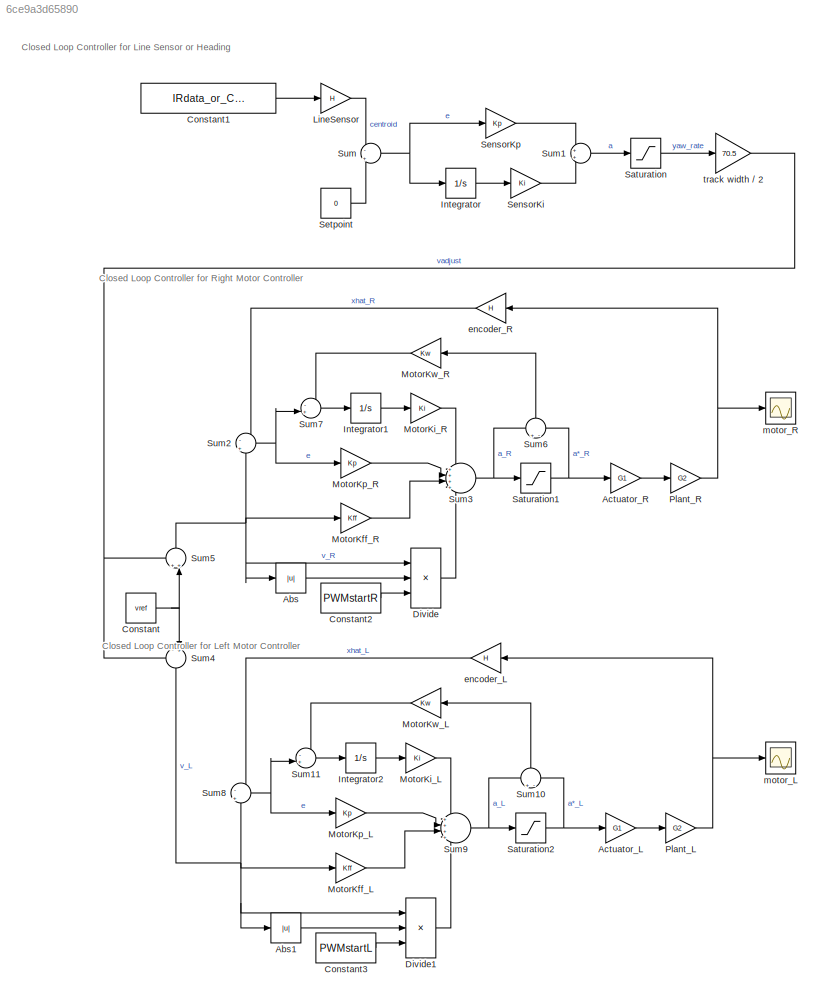
MODEL slx_6ce9a3d65890
KIND model
CONFIG AbsTol = auto
CONFIG EnableMultiTasking = off
CONFIG FixedStep = auto
CONFIG MaxStep = auto
CONFIG MinStep = auto
CONFIG RelTol = 1e-3
CONFIG SampleTimeConstraint = Unconstrained
CONFIG SolverName = VariableStepAuto
CONFIG StartTime = 0.0
CONFIG StopTime = 10.0
WORKSPACE source: mxarray member
WORKSPACE G1 = 1
WORKSPACE G2 = 1
WORKSPACE H = 1
WORKSPACE IRdata = 1
WORKSPACE Kd = 1
WORKSPACE Kff = 1
WORKSPACE Ki = 1
WORKSPACE Kp = 1
WORKSPACE Kw = 1
WORKSPACE PWMstartL = 1
WORKSPACE r = 0
WORKSPACE vref = 1
BLOCK [Abs] Abs
  SaturateOnIntegerOverflow = off
BLOCK [Abs] Abs1
  SaturateOnIntegerOverflow = off
BLOCK [Gain] Actuator_L
  Gain = G1
BLOCK [Gain] Actuator_R
  Gain = G1
BLOCK [Constant] Constant
  Value = vref
BLOCK [Constant] Constant1
  Value = IRdata_or_CurrentHeading
BLOCK [Constant] Constant2
  Value = PWMstartR
BLOCK [Constant] Constant3
  Value = PWMstartL
BLOCK [Product] Divide
  Inputs = */*
BLOCK [Product] Divide1
  Inputs = */*
BLOCK [Integrator] Integrator
BLOCK [Integrator] Integrator1
BLOCK [Integrator] Integrator2
BLOCK [Gain] LineSensor
  Gain = H
BLOCK [Gain] MotorKff_L
  Gain = Kff
BLOCK [Gain] MotorKff_R
  Gain = Kff
BLOCK [Gain] MotorKi_L
  Gain = Ki
BLOCK [Gain] MotorKi_R
  Gain = Ki
BLOCK [Gain] MotorKp_L
  Gain = Kp
BLOCK [Gain] MotorKp_R
  Gain = Kp
BLOCK [Gain] MotorKw_L
  Gain = Kw
BLOCK [Gain] MotorKw_R
  Gain = Kw
BLOCK [Gain] Plant_L
  Gain = G2
BLOCK [Gain] Plant_R
  Gain = G2
BLOCK [Saturate] Saturation
BLOCK [Saturate] Saturation1
BLOCK [Saturate] Saturation2
BLOCK [Gain] SensorKi
  Gain = Ki
BLOCK [Gain] SensorKp
  Gain = Kp
BLOCK [Constant] Setpoint
  Value = 0
BLOCK [Sum] Sum
  Inputs = -|+
BLOCK [Sum] Sum1
BLOCK [Sum] Sum10
  Inputs = +-
  NameLocation = left
BLOCK [Sum] Sum11
  Inputs = -+|
BLOCK [Sum] Sum2
  Inputs = -|+
BLOCK [Sum] Sum3
  Inputs = ++++
BLOCK [Sum] Sum4
  Inputs = -+|
  NameLocation = left
BLOCK [Sum] Sum5
  Inputs = ++|
  NameLocation = right
BLOCK [Sum] Sum6
  Inputs = +-
  NameLocation = left
BLOCK [Sum] Sum7
  Inputs = -+|
BLOCK [Sum] Sum8
  Inputs = -|+
BLOCK [Sum] Sum9
  Inputs = ++++
BLOCK [Gain] encoder_L
  Gain = H
BLOCK [Gain] encoder_R
  Gain = H
BLOCK [Scope] motor_L
  Floating = off
  NumInputPorts = 1
  ScopeSpecificationString = Simulink.scopes.TimeScopeBlockCfg('CurrentConfiguration', extmgr.ConfigurationSet(extmgr.Configuration('Core','General UI',true),extmgr.Configuration('Core','Source UI',true),extmgr.Configuration('Sources','WiredSimulink',true,'DataLoggingVariableName','ScopeData1'),extmgr.Configuration('Visuals','Time Domain',true),extmgr.Configuration('Tools','Plot Navigation',true),extmgr.Configuration('Tools',...<+40ch>
BLOCK [Scope] motor_R
  Floating = off
  NumInputPorts = 1
  ScopeSpecificationString = Simulink.scopes.TimeScopeBlockCfg('CurrentConfiguration', extmgr.ConfigurationSet(extmgr.Configuration('Core','General UI',true),extmgr.Configuration('Core','Source UI',true),extmgr.Configuration('Sources','WiredSimulink',true,'DataLoggingVariableName','ScopeData1'),extmgr.Configuration('Visuals','Time Domain',true),extmgr.Configuration('Tools','Plot Navigation',true),extmgr.Configuration('Tools',...<+40ch>
BLOCK [Gain] track width // 2
  Gain = 70.5
ANNOTATION (root): Closed Loop Controller for Left Motor Controller
ANNOTATION (root): Closed Loop Controller for Line Sensor or Heading
ANNOTATION (root): Closed Loop Controller for Right Motor Controller
LINE Abs1:1 -> Divide1:2
LINE Abs:1 -> Divide:2
LINE Actuator_L:1 -> Plant_L:1
LINE Actuator_R:1 -> Plant_R:1
LINE Constant1:1 -> LineSensor:1
LINE Constant2:1 -> Divide:3
LINE Constant3:1 -> Divide1:3
NET Constant:1 -> Sum4:2, Sum5:2
LINE Divide1:1 -> Sum9:4
LINE Divide:1 -> Sum3:4
LINE Integrator1:1 -> MotorKi_R:1
LINE Integrator2:1 -> MotorKi_L:1
LINE Integrator:1 -> SensorKi:1
LINE LineSensor:1 -> Sum:1
LINE MotorKff_L:1 -> Sum9:3
LINE MotorKff_R:1 -> Sum3:3
LINE MotorKi_L:1 -> Sum9:1
LINE MotorKi_R:1 -> Sum3:1
LINE MotorKp_L:1 -> Sum9:2
LINE MotorKp_R:1 -> Sum3:2
LINE MotorKw_L:1 -> Sum11:1
LINE MotorKw_R:1 -> Sum7:1
NET Plant_L:1 -> encoder_L:1, motor_L:1
NET Plant_R:1 -> encoder_R:1, motor_R:1
NET Saturation1:1 -> Actuator_R:1, Sum6:2
NET Saturation2:1 -> Actuator_L:1, Sum10:2
LINE Saturation:1 -> track width // 2:1
LINE SensorKi:1 -> Sum1:2
LINE SensorKp:1 -> Sum1:1
LINE Setpoint:1 -> Sum:2
LINE Sum10:1 -> MotorKw_L:1
LINE Sum11:1 -> Integrator2:1
LINE Sum1:1 -> Saturation:1
NET Sum2:1 -> MotorKp_R:1, Sum7:2
NET Sum3:1 -> Saturation1:1, Sum6:1
NET Sum4:1 -> Abs1:1, Divide1:1, MotorKff_L:1, Sum8:2
NET Sum5:1 -> Abs:1, Divide:1, MotorKff_R:1, Sum2:2
LINE Sum6:1 -> MotorKw_R:1
LINE Sum7:1 -> Integrator1:1
NET Sum8:1 -> MotorKp_L:1, Sum11:2
NET Sum9:1 -> Saturation2:1, Sum10:1
NET Sum:1 -> Integrator:1, SensorKp:1
LINE encoder_L:1 -> Sum8:1
LINE encoder_R:1 -> Sum2:1
NET track width // 2:1 -> Sum4:1, Sum5:1
note: NET lines group one-source signal fan-out (src -> all destinations, sorted); 1:1 wires keep LINE
